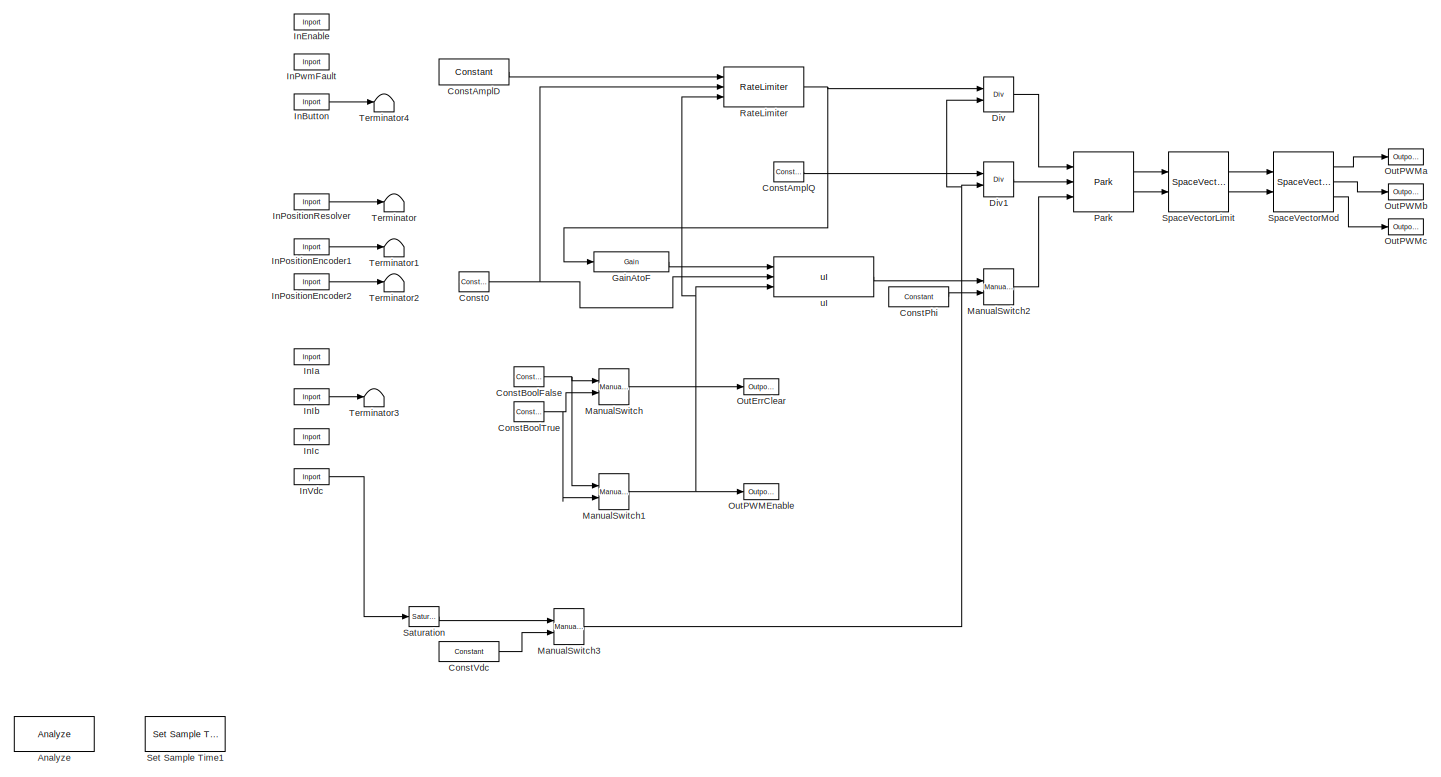
[diagram: root canvas - part 1/1, most of the canvas]
MODEL slx_364d47d919f4
KIND model
CONFIG AbsTol = auto
CONFIG EnableMultiTasking = on
CONFIG FixedStep = auto
CONFIG MaxStep = auto
CONFIG MinStep = auto
CONFIG RelTol = 1e-3
CONFIG SampleTimeConstraint = Unconstrained
CONFIG SolverName = ode45
CONFIG StartTime = 0.0
CONFIG StopTime = 10.0
BLOCK [Reference] Analyze  REF=Basic/Analyze
  Ports = []
  SourceBlock = Basic/Analyze
  SourceProductName = X2C Basic
  SourceType = X2C System Block
BLOCK [Reference] Const0  REF=General/Constant
  Ports = [0, 1]
  SourceBlock = General/Constant
  SourceProductName = X2C General
  SourceType = X2C - Constant
BLOCK [Reference] ConstAmplD  REF=General/Constant
  Ports = [0, 1]
  SourceBlock = General/Constant
  SourceProductName = X2C General
  SourceType = X2C - Constant
BLOCK [Reference] ConstAmplQ  REF=General/Constant
  Ports = [0, 1]
  SourceBlock = General/Constant
  SourceProductName = X2C General
  SourceType = X2C - Constant
BLOCK [Reference] ConstBoolFalse  REF=General/Constant
  Ports = [0, 1]
  SourceBlock = General/Constant
  SourceProductName = X2C General
  SourceType = X2C - Constant
BLOCK [Reference] ConstBoolTrue  REF=General/Constant
  Ports = [0, 1]
  SourceBlock = General/Constant
  SourceProductName = X2C General
  SourceType = X2C - Constant
BLOCK [Reference] ConstPhi  REF=General/Constant
  Ports = [0, 1]
  SourceBlock = General/Constant
  SourceProductName = X2C General
  SourceType = X2C - Constant
BLOCK [Reference] ConstVdc  REF=General/Constant
  Ports = [0, 1]
  SourceBlock = General/Constant
  SourceProductName = X2C General
  SourceType = X2C - Constant
BLOCK [Reference] Div  REF=Math/Div
  Ports = [2, 1]
  SourceBlock = Math/Div
  SourceProductName = X2C Math
  SourceType = X2C - Div
BLOCK [Reference] Div1  REF=Math/Div
  Ports = [2, 1]
  SourceBlock = Math/Div
  SourceProductName = X2C Math
  SourceType = X2C - Div
BLOCK [Reference] GainAtoF  REF=General/Gain
  Ports = [1, 1]
  SourceBlock = General/Gain
  SourceProductName = X2C General
  SourceType = X2C - Gain
BLOCK [Reference] InButton  REF=General/Inport
  Ports = [1, 1]
  SourceBlock = General/Inport
  SourceProductName = X2C General
  SourceType = X2C - Inport
BLOCK [Reference] InEnable  REF=General/Inport
  Ports = [1, 1]
  SourceBlock = General/Inport
  SourceProductName = X2C General
  SourceType = X2C - Inport
BLOCK [Reference] InIa  REF=General/Inport
  Ports = [1, 1]
  SourceBlock = General/Inport
  SourceProductName = X2C General
  SourceType = X2C - Inport
BLOCK [Reference] InIb  REF=General/Inport
  Ports = [1, 1]
  SourceBlock = General/Inport
  SourceProductName = X2C General
  SourceType = X2C - Inport
BLOCK [Reference] InIc  REF=General/Inport
  Ports = [1, 1]
  SourceBlock = General/Inport
  SourceProductName = X2C General
  SourceType = X2C - Inport
BLOCK [Reference] InPositionEncoder1  REF=General/Inport
  Ports = [1, 1]
  SourceBlock = General/Inport
  SourceProductName = X2C General
  SourceType = X2C - Inport
BLOCK [Reference] InPositionEncoder2  REF=General/Inport
  Ports = [1, 1]
  SourceBlock = General/Inport
  SourceProductName = X2C General
  SourceType = X2C - Inport
BLOCK [Reference] InPositionResolver  REF=General/Inport
  Ports = [1, 1]
  SourceBlock = General/Inport
  SourceProductName = X2C General
  SourceType = X2C - Inport
BLOCK [Reference] InPwmFault  REF=General/Inport
  Ports = [1, 1]
  SourceBlock = General/Inport
  SourceProductName = X2C General
  SourceType = X2C - Inport
BLOCK [Reference] InVdc  REF=General/Inport
  Ports = [1, 1]
  SourceBlock = General/Inport
  SourceProductName = X2C General
  SourceType = X2C - Inport
BLOCK [Reference] ManualSwitch  REF=General/ManualSwitch
  Ports = [2, 1]
  SourceBlock = General/ManualSwitch
  SourceProductName = X2C General
  SourceType = X2C - ManualSwitch
BLOCK [Reference] ManualSwitch1  REF=General/ManualSwitch
  Ports = [2, 1]
  SourceBlock = General/ManualSwitch
  SourceProductName = X2C General
  SourceType = X2C - ManualSwitch
BLOCK [Reference] ManualSwitch2  REF=General/ManualSwitch
  Ports = [2, 1]
  SourceBlock = General/ManualSwitch
  SourceProductName = X2C General
  SourceType = X2C - ManualSwitch
BLOCK [Reference] ManualSwitch3  REF=General/ManualSwitch
  Ports = [2, 1]
  SourceBlock = General/ManualSwitch
  SourceProductName = X2C General
  SourceType = X2C - ManualSwitch
BLOCK [Reference] OutErrClear  REF=General/Outport
  Ports = [1, 1]
  SourceBlock = General/Outport
  SourceProductName = X2C General
  SourceType = X2C - Outport
BLOCK [Reference] OutPWMEnable  REF=General/Outport
  Ports = [1, 1]
  SourceBlock = General/Outport
  SourceProductName = X2C General
  SourceType = X2C - Outport
BLOCK [Reference] OutPWMa  REF=General/Outport
  Ports = [1, 1]
  SourceBlock = General/Outport
  SourceProductName = X2C General
  SourceType = X2C - Outport
BLOCK [Reference] OutPWMb  REF=General/Outport
  Ports = [1, 1]
  SourceBlock = General/Outport
  SourceProductName = X2C General
  SourceType = X2C - Outport
BLOCK [Reference] OutPWMc  REF=General/Outport
  Ports = [1, 1]
  SourceBlock = General/Outport
  SourceProductName = X2C General
  SourceType = X2C - Outport
BLOCK [Reference] Park  REF=MotorControl/Park
  Ports = [3, 2]
  SourceBlock = MotorControl/Park
  SourceProductName = X2C MotorControl
  SourceType = X2C - Park
BLOCK [Reference] RateLimiter  REF=General/RateLimiter
  Ports = [3, 1]
  SourceBlock = General/RateLimiter
  SourceProductName = X2C General
  SourceType = X2C - RateLimiter
BLOCK [Reference] Saturation  REF=General/Saturation
  Ports = [1, 1]
  SourceBlock = General/Saturation
  SourceProductName = X2C General
  SourceType = X2C - Saturation
BLOCK [Reference] Set Sample Time1  REF=Basic/Set Sample Time
  Ports = []
  SourceBlock = Basic/Set Sample Time
  SourceProductName = X2C Basic
  SourceType = X2C System Block
BLOCK [Reference] SpaceVectorLimit  REF=MotorControl/SpaceVectorLimit
  Ports = [2, 2]
  SourceBlock = MotorControl/SpaceVectorLimit
  SourceProductName = X2C MotorControl
  SourceType = X2C - SpaceVectorLimit
BLOCK [Reference] SpaceVectorMod  REF=MotorControl/SpaceVectorMod
  Ports = [2, 3]
  SourceBlock = MotorControl/SpaceVectorMod
  SourceProductName = X2C MotorControl
  SourceType = X2C - SpaceVectorMod
BLOCK [Terminator] Terminator
BLOCK [Terminator] Terminator1
BLOCK [Terminator] Terminator2
BLOCK [Terminator] Terminator3
BLOCK [Terminator] Terminator4
BLOCK [Reference] uI  REF=Control/uI
  Ports = [3, 1]
  SourceBlock = Control/uI
  SourceProductName = X2C Control
  SourceType = X2C - uI
NET Const0:1 -> RateLimiter:2, uI:2
LINE ConstAmplD:1 -> RateLimiter:1
LINE ConstAmplQ:1 -> Div1:1
NET ConstBoolFalse:1 -> ManualSwitch1:1, ManualSwitch:1
NET ConstBoolTrue:1 -> ManualSwitch1:2, ManualSwitch:2
LINE ConstPhi:1 -> ManualSwitch2:2
LINE ConstVdc:1 -> ManualSwitch3:2
LINE Div1:1 -> Park:2
LINE Div:1 -> Park:1
LINE GainAtoF:1 -> uI:1
LINE InButton:1 -> Terminator4:1
LINE InIb:1 -> Terminator3:1
LINE InPositionEncoder1:1 -> Terminator1:1
LINE InPositionEncoder2:1 -> Terminator2:1
LINE InPositionResolver:1 -> Terminator:1
LINE InVdc:1 -> Saturation:1
NET ManualSwitch1:1 -> OutPWMEnable:1, RateLimiter:3, uI:3
LINE ManualSwitch2:1 -> Park:3
NET ManualSwitch3:1 -> Div1:2, Div:2
LINE ManualSwitch:1 -> OutErrClear:1
LINE Park:1 -> SpaceVectorLimit:1
LINE Park:2 -> SpaceVectorLimit:2
NET RateLimiter:1 -> Div:1, GainAtoF:1
LINE Saturation:1 -> ManualSwitch3:1
LINE SpaceVectorLimit:1 -> SpaceVectorMod:1
LINE SpaceVectorLimit:2 -> SpaceVectorMod:2
LINE SpaceVectorMod:1 -> OutPWMa:1
LINE SpaceVectorMod:2 -> OutPWMb:1
LINE SpaceVectorMod:3 -> OutPWMc:1
LINE uI:1 -> ManualSwitch2:1
note: NET lines group one-source signal fan-out (src -> all destinations, sorted); 1:1 wires keep LINE
